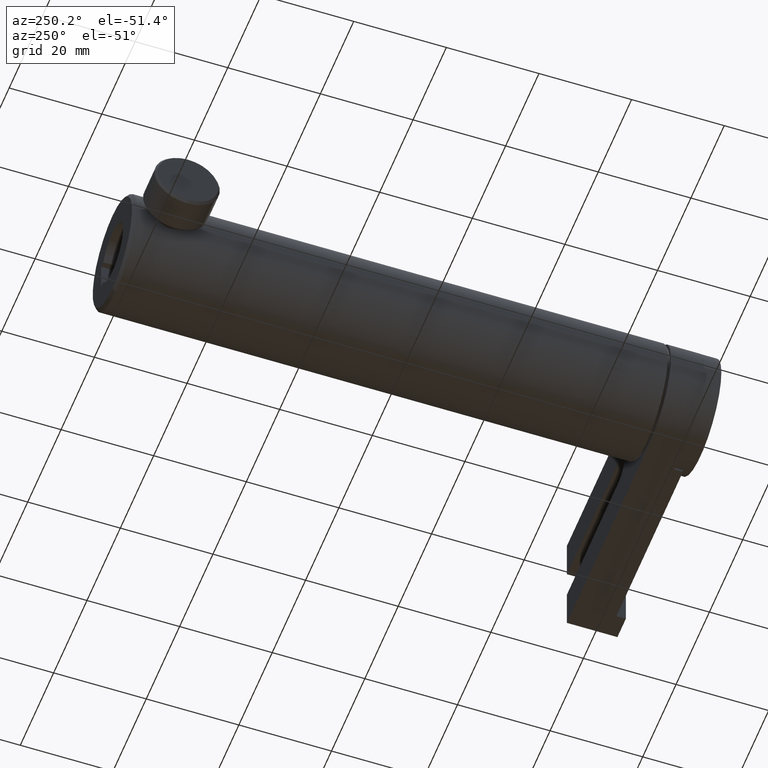
[diagram: clean part render]
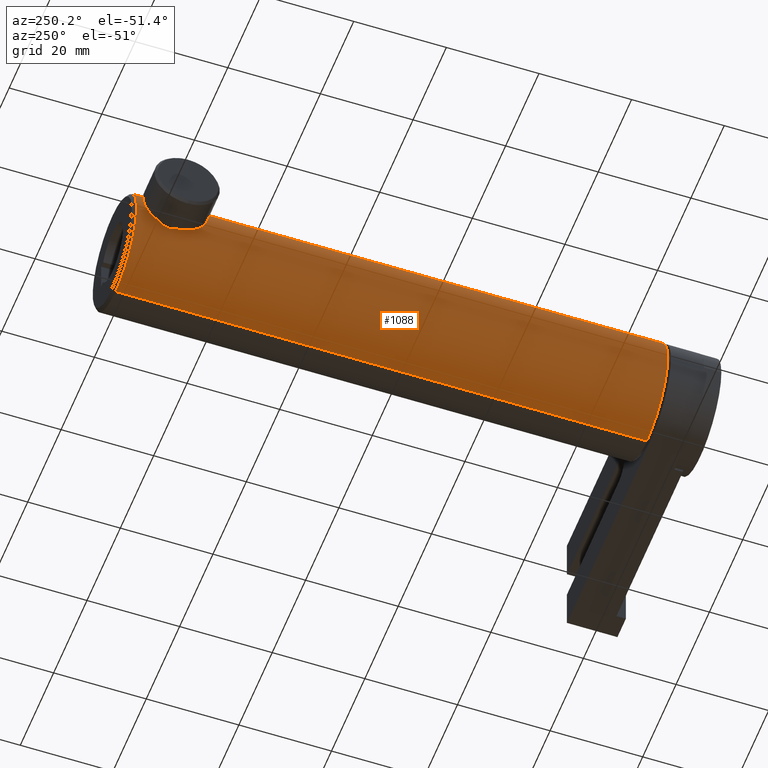
[diagram: same view with one face highlighted and labeled with its STEP entity id]
A machine part, auxiliary view. The second image highlights one B-rep face of the part: STEP entity #1088.
In plain terms, the highlighted cylindrical surface (partial cylindrical patch) has radius 12.4968 mm, axis along (-0, -1, -0).
Its self-contained STEP definition (entity closure, byte-faithful):
#7 = CIRCLE ( 'NONE', #39, 12.49680000000000600 ) ;
#39 = AXIS2_PLACEMENT_3D ( 'NONE', #3314, #1867, #2138 ) ;
#199 = VECTOR ( 'NONE', #452, 1000.000000000000000 ) ;
#325 = ORIENTED_EDGE ( 'NONE', *, *, #3123, .T. ) ;
#452 = DIRECTION ( 'NONE',  ( -0.0000000000000000000, -1.000000000000000000, -0.0000000000000000000 ) ) ;
#485 = CARTESIAN_POINT ( 'NONE',  ( 4.123066643891380800, 121.1271347877649900, -1.839923381405735800E-015 ) ) ;
#671 = CARTESIAN_POINT ( 'NONE',  ( 4.123066643891380800, 121.8271347877649000, -12.49680000000000700 ) ) ;
#699 = CARTESIAN_POINT ( 'NONE',  ( 4.123066643891382600, 6.398134787764964100, 12.49680000000000400 ) ) ;
#828 = CIRCLE ( 'NONE', #3312, 12.49680000000000600 ) ;
#910 = EDGE_CURVE ( 'NONE', #1882, #2130, #7, .T. ) ;
#1088 = ADVANCED_FACE ( 'NONE', ( #2180 ), #1669, .T. ) ;
#1100 = EDGE_LOOP ( 'NONE', ( #1679, #325, #2100, #1984 ) ) ;
#1395 = CARTESIAN_POINT ( 'NONE',  ( 4.123066643891380800, 6.398134787764964100, -12.49680000000000700 ) ) ;
#1652 = EDGE_CURVE ( 'NONE', #1843, #2130, #1983, .T. ) ;
#1669 = CYLINDRICAL_SURFACE ( 'NONE', #1745, 12.49680000000000600 ) ;
#1679 = ORIENTED_EDGE ( 'NONE', *, *, #1652, .F. ) ;
#1696 = CARTESIAN_POINT ( 'NONE',  ( 4.123066643891382600, 121.1271347877649900, 12.49680000000000400 ) ) ;
#1745 = AXIS2_PLACEMENT_3D ( 'NONE', #1764, #2331, #2609 ) ;
#1764 = CARTESIAN_POINT ( 'NONE',  ( 4.123066643891380800, 121.8271347877649000, -1.839923381405735800E-015 ) ) ;
#1843 = VERTEX_POINT ( 'NONE', #1696 ) ;
#1867 = DIRECTION ( 'NONE',  ( -0.0000000000000000000, 1.000000000000000000, -0.0000000000000000000 ) ) ;
#1882 = VERTEX_POINT ( 'NONE', #1395 ) ;
#1983 = LINE ( 'NONE', #2188, #199 ) ;
#1984 = ORIENTED_EDGE ( 'NONE', *, *, #910, .T. ) ;
#2100 = ORIENTED_EDGE ( 'NONE', *, *, #2958, .T. ) ;
#2109 = CARTESIAN_POINT ( 'NONE',  ( 4.123066643891380800, 121.1271347877649900, -12.49680000000000700 ) ) ;
#2130 = VERTEX_POINT ( 'NONE', #699 ) ;
#2138 = DIRECTION ( 'NONE',  ( 0.0000000000000000000, 0.0000000000000000000, 1.000000000000000000 ) ) ;
#2180 = FACE_OUTER_BOUND ( 'NONE', #1100, .T. ) ;
#2188 = CARTESIAN_POINT ( 'NONE',  ( 4.123066643891382600, 121.8271347877649000, 12.49680000000000400 ) ) ;
#2208 = VECTOR ( 'NONE', #3625, 1000.000000000000000 ) ;
#2331 = DIRECTION ( 'NONE',  ( -0.0000000000000000000, -1.000000000000000000, -0.0000000000000000000 ) ) ;
#2558 = DIRECTION ( 'NONE',  ( 0.0000000000000000000, 0.0000000000000000000, 1.000000000000000000 ) ) ;
#2609 = DIRECTION ( 'NONE',  ( 0.0000000000000000000, 0.0000000000000000000, -1.000000000000000000 ) ) ;
#2801 = VERTEX_POINT ( 'NONE', #2109 ) ;
#2811 = LINE ( 'NONE', #671, #2208 ) ;
#2958 = EDGE_CURVE ( 'NONE', #2801, #1882, #2811, .T. ) ;
#3123 = EDGE_CURVE ( 'NONE', #1843, #2801, #828, .T. ) ;
#3312 = AXIS2_PLACEMENT_3D ( 'NONE', #485, #3723, #2558 ) ;
#3314 = CARTESIAN_POINT ( 'NONE',  ( 4.123066643891380800, 6.398134787764964100, -1.839923381405735800E-015 ) ) ;
#3625 = DIRECTION ( 'NONE',  ( -0.0000000000000000000, -1.000000000000000000, -0.0000000000000000000 ) ) ;
#3723 = DIRECTION ( 'NONE',  ( 0.0000000000000000000, -1.000000000000000000, 0.0000000000000000000 ) ) ;